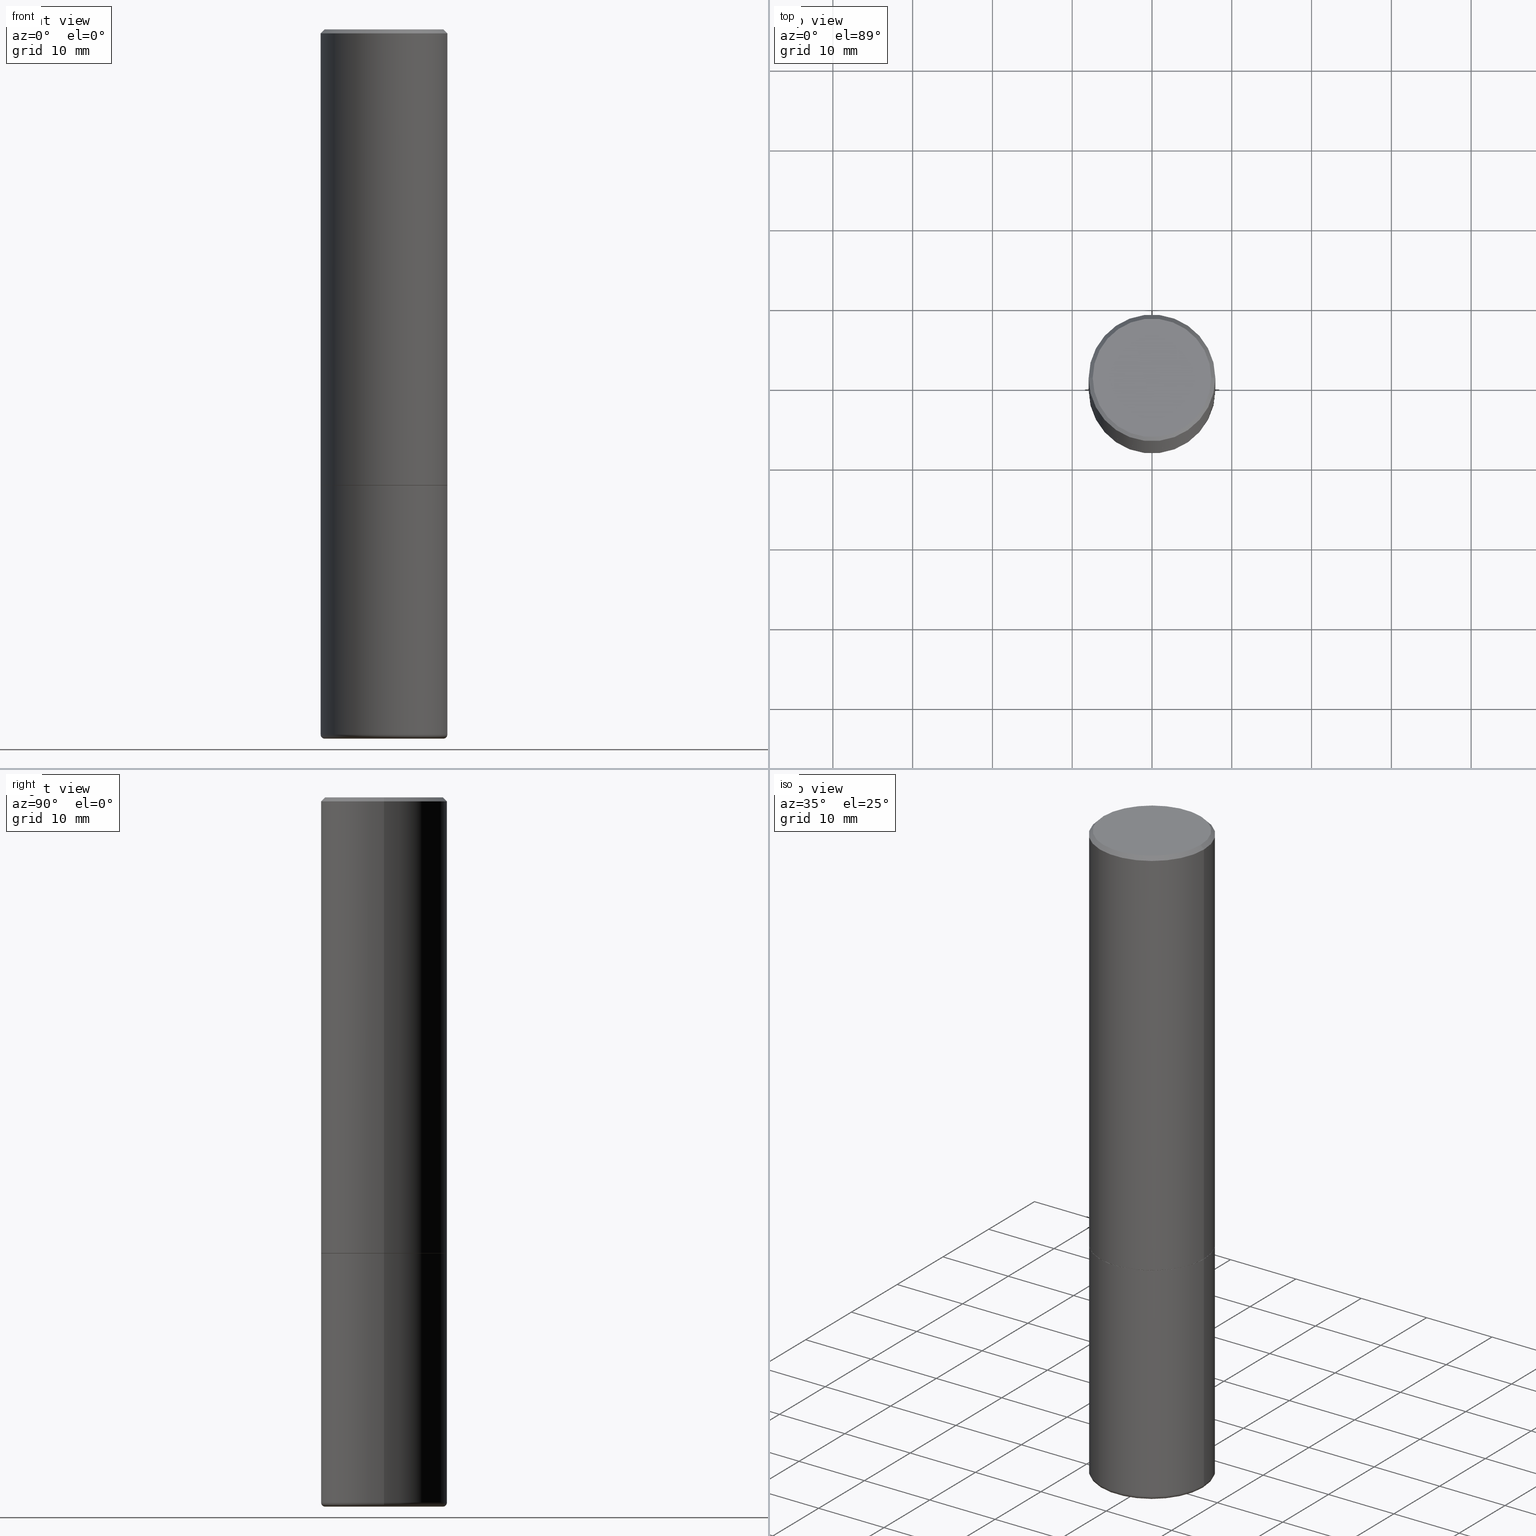
[diagram: canonical four-view strip — front | top / right | iso, engineering-drawing reading convention]
A machine part, canonical four-view strip (front | top / right | iso — engineering-drawing reading convention). The complete STEP part file that produces these views, byte-faithful:
ISO-10303-21;
HEADER;
FILE_DESCRIPTION (( 'STEP AP203' ),
    '1' );
FILE_NAME ('38180.STEP',
    '2023-03-22T20:30:16',
    ( '' ),
    ( '' ),
    'SwSTEP 2.0',
    'SolidWorks 2022',
    '' );
FILE_SCHEMA (( 'CONFIG_CONTROL_DESIGN' ));
ENDSEC;

DATA;
#1 = CARTESIAN_POINT ( 'NONE',  ( 8.522150908112921551E-29, -1.216633421009208123E-14, -3.484725580784579169 ) ) ;
#2 = EDGE_CURVE ( 'NONE', #30, #95, #122, .T. ) ;
#3 = FACE_OUTER_BOUND ( 'NONE', #417, .T. ) ;
#4 = AXIS2_PLACEMENT_3D ( 'NONE', #63, #68, #236 ) ;
#5 = ADVANCED_FACE ( 'NONE', ( #173 ), #110, .F. ) ;
#6 = ORIENTED_EDGE ( 'NONE', *, *, #218, .T. ) ;
#7 = CARTESIAN_POINT ( 'NONE',  ( -0.3124999999999998890, 2.220446049250312292E-15, -1.537167215704657391E-29 ) ) ;
#8 = DIRECTION ( 'NONE',  ( 1.000000000000000000, -6.982962677686266711E-15, 4.876176775795935232E-29 ) ) ;
#9 = CC_DESIGN_PERSON_AND_ORGANIZATION_ASSIGNMENT ( #411, #49, ( #199 ) ) ;
#10 = ADVANCED_FACE ( 'NONE', ( #400 ), #228, .T. ) ;
#11 = FACE_OUTER_BOUND ( 'NONE', #91, .T. ) ;
#12 = VECTOR ( 'NONE', #352, 39.37007874015748143 ) ;
#13 = ORIENTED_EDGE ( 'NONE', *, *, #170, .T. ) ;
#14 = VECTOR ( 'NONE', #305, 39.37007874015748143 ) ;
#15 = DATE_AND_TIME ( #243, #247 ) ;
#16 = CARTESIAN_POINT ( 'NONE',  ( 5.201262067026669480E-19, -1.216685433629869943E-14, -3.484725580784579169 ) ) ;
#17 = FACE_OUTER_BOUND ( 'NONE', #387, .T. ) ;
#18 = EDGE_CURVE ( 'NONE', #424, #171, #234, .T. ) ;
#19 = ORIENTED_EDGE ( 'NONE', *, *, #41, .T. ) ;
#20 = CARTESIAN_POINT ( 'NONE',  ( 5.499859345110370619E-29, -7.852341531058232286E-15, -2.248999999999999222 ) ) ;
#21 = EDGE_CURVE ( 'NONE', #358, #416, #158, .T. ) ;
#22 = APPLICATION_CONTEXT ( 'configuration controlled 3d designs of mechanical parts and assemblies' ) ;
#23 = CIRCLE ( 'NONE', #31, 0.3124999999999998335 ) ;
#24 = FACE_OUTER_BOUND ( 'NONE', #425, .T. ) ;
#25 = ORIENTED_EDGE ( 'NONE', *, *, #258, .T. ) ;
#26 = CARTESIAN_POINT ( 'NONE',  ( -0.2914532808751413295, -1.003964463977932083E-14, -3.499999999999999112 ) ) ;
#27 = ADVANCED_FACE ( 'NONE', ( #251 ), #150, .F. ) ;
#28 = VERTEX_POINT ( 'NONE', #143 ) ;
#29 = PERSON_AND_ORGANIZATION ( #368, #378 ) ;
#30 = VERTEX_POINT ( 'NONE', #410 ) ;
#31 = AXIS2_PLACEMENT_3D ( 'NONE', #47, #79, #339 ) ;
#32 =( GEOMETRIC_REPRESENTATION_CONTEXT ( 3 ) GLOBAL_UNCERTAINTY_ASSIGNED_CONTEXT ( ( #64 ) ) GLOBAL_UNIT_ASSIGNED_CONTEXT ( ( #98, #92, #356 ) ) REPRESENTATION_CONTEXT ( 'NONE', 'WORKASPACE' ) );
#33 = LENGTH_MEASURE_WITH_UNIT ( LENGTH_MEASURE( 0.02539999999999999897 ), #162 );
#34 = ORIENTED_EDGE ( 'NONE', *, *, #84, .T. ) ;
#35 = APPLICATION_PROTOCOL_DEFINITION ( 'international standard', 'config_control_design', 1994, #335 ) ;
#36 = ORIENTED_EDGE ( 'NONE', *, *, #186, .F. ) ;
#37 = APPROVAL_DATE_TIME ( #433, #275 ) ;
#38 = PERSON_AND_ORGANIZATION_ROLE ( 'creator' ) ;
#39 = DIRECTION ( 'NONE',  ( 1.000000000000000000, -6.982962677686265922E-15, 0.000000000000000000 ) ) ;
#40 = LINE ( 'NONE', #213, #437 ) ;
#41 = EDGE_CURVE ( 'NONE', #355, #28, #23, .T. ) ;
#42 = APPROVAL_STATUS ( 'not_yet_approved' ) ;
#43 = DIRECTION ( 'NONE',  ( 2.438088387897960049E-29, -3.491481338843145188E-15, -1.000000000000000000 ) ) ;
#44 = DIRECTION ( 'NONE',  ( -1.000000000000000000, 6.982962677686265133E-15, 0.000000000000000000 ) ) ;
#45 = VECTOR ( 'NONE', #113, 39.37007874015748143 ) ;
#46 = LOCAL_TIME ( 16, 30, 16.00000000000000000, #181 ) ;
#47 = CARTESIAN_POINT ( 'NONE',  ( 4.890937612370276662E-31, -6.982962677686296539E-17, -0.02000000000000001776 ) ) ;
#48 = DIRECTION ( 'NONE',  ( -1.000000000000000000, 7.105427357601025525E-15, 0.000000000000000000 ) ) ;
#49 = PERSON_AND_ORGANIZATION_ROLE ( 'classification_officer' ) ;
#50 = DIRECTION ( 'NONE',  ( -2.445468806185136597E-29, 3.491481338843145583E-15, 1.000000000000000000 ) ) ;
#51 = VECTOR ( 'NONE', #229, 39.37007874015748854 ) ;
#52 = EDGE_CURVE ( 'NONE', #397, #93, #214, .T. ) ;
#53 = DIRECTION ( 'NONE',  ( -2.445468806185136597E-29, 3.491481338843145583E-15, 1.000000000000000000 ) ) ;
#54 = ORIENTED_EDGE ( 'NONE', *, *, #218, .F. ) ;
#55 = CARTESIAN_POINT ( 'NONE',  ( 5.502304813916556222E-29, -7.855833012397076871E-15, -2.249999999999999556 ) ) ;
#56 = ORIENTED_EDGE ( 'NONE', *, *, #395, .T. ) ;
#57 = DIRECTION ( 'NONE',  ( -2.445468806185136597E-29, 3.491481338843145583E-15, 1.000000000000000000 ) ) ;
#58 = ORIENTED_EDGE ( 'NONE', *, *, #258, .F. ) ;
#59 = AXIS2_PLACEMENT_3D ( 'NONE', #370, #409, #74 ) ;
#60 = CIRCLE ( 'NONE', #191, 0.01999999999999971939 ) ;
#61 = DIRECTION ( 'NONE',  ( -2.445468806185136597E-29, 3.491481338843145583E-15, 1.000000000000000000 ) ) ;
#62 = ORIENTED_EDGE ( 'NONE', *, *, #375, .F. ) ;
#63 = CARTESIAN_POINT ( 'NONE',  ( 0.000000000000000000, 0.000000000000000000, 0.000000000000000000 ) ) ;
#64 = UNCERTAINTY_MEASURE_WITH_UNIT (LENGTH_MEASURE( 1.000000000000000082E-05 ), #98, 'distance_accuracy_value', 'NONE');
#65 = LOCAL_TIME ( 16, 30, 16.00000000000000000, #135 ) ;
#66 = DIRECTION ( 'NONE',  ( 1.000000000000000000, -6.982962677686266711E-15, 4.876176775795935232E-29 ) ) ;
#67 = ORIENTED_EDGE ( 'NONE', *, *, #52, .F. ) ;
#68 = DIRECTION ( 'NONE',  ( 0.000000000000000000, 0.000000000000000000, 1.000000000000000000 ) ) ;
#69 = DIRECTION ( 'NONE',  ( 1.000000000000000000, -6.982962677686265922E-15, 0.000000000000000000 ) ) ;
#70 = ORIENTED_EDGE ( 'NONE', *, *, #421, .T. ) ;
#71 = SECURITY_CLASSIFICATION_LEVEL ( 'unclassified' ) ;
#72 = AXIS2_PLACEMENT_3D ( 'NONE', #232, #126, #315 ) ;
#73 = AXIS2_PLACEMENT_3D ( 'NONE', #412, #120, #415 ) ;
#74 = DIRECTION ( 'NONE',  ( -1.000000000000000000, 6.982962677686266711E-15, 0.000000000000000000 ) ) ;
#75 = ADVANCED_FACE ( 'NONE', ( #278 ), #185, .T. ) ;
#76 = PERSON_AND_ORGANIZATION ( #368, #378 ) ;
#77 = CARTESIAN_POINT ( 'NONE',  ( -0.3124999999999998890, 2.220446049250312292E-15, -1.537167215704657391E-29 ) ) ;
#78 = FACE_OUTER_BOUND ( 'NONE', #286, .T. ) ;
#79 = DIRECTION ( 'NONE',  ( -2.445468806185136597E-29, 3.491481338843145583E-15, 1.000000000000000000 ) ) ;
#80 = AXIS2_PLACEMENT_3D ( 'NONE', #273, #217, #44 ) ;
#81 = CONICAL_SURFACE ( 'NONE', #385, 0.3114999999999999991, 0.7853981633972775267 ) ;
#82 = DIRECTION ( 'NONE',  ( -2.445468806185136597E-29, 3.491481338843145583E-15, 1.000000000000000000 ) ) ;
#83 = LINE ( 'NONE', #16, #190 ) ;
#84 = EDGE_CURVE ( 'NONE', #95, #355, #40, .T. ) ;
#85 = EDGE_LOOP ( 'NONE', ( #114, #366, #108, #188 ) ) ;
#86 = DIRECTION ( 'NONE',  ( -2.438088387897960049E-29, 3.491481338843145188E-15, 1.000000000000000000 ) ) ;
#87 = CIRCLE ( 'NONE', #230, 0.3125000000000000000 ) ;
#88 = DIRECTION ( 'NONE',  ( 1.000000000000000000, -6.982962677686269077E-15, 4.883557194083113462E-29 ) ) ;
#89 = ORIENTED_EDGE ( 'NONE', *, *, #367, .F. ) ;
#90 = DIRECTION ( 'NONE',  ( 1.000000000000000000, -6.982962677686236734E-15, 0.000000000000000000 ) ) ;
#91 = EDGE_LOOP ( 'NONE', ( #264, #34, #19, #365 ) ) ;
#92 =( NAMED_UNIT ( * ) PLANE_ANGLE_UNIT ( ) SI_UNIT ( $, .RADIAN. ) );
#93 = VERTEX_POINT ( 'NONE', #337 ) ;
#94 = AXIS2_PLACEMENT_3D ( 'NONE', #151, #383, #88 ) ;
#95 = VERTEX_POINT ( 'NONE', #376 ) ;
#96 = ORIENTED_EDGE ( 'NONE', *, *, #101, .T. ) ;
#97 = EDGE_CURVE ( 'NONE', #322, #93, #340, .T. ) ;
#98 =( CONVERSION_BASED_UNIT ( 'INCH', #33 ) LENGTH_UNIT ( ) NAMED_UNIT ( #314 ) );
#99 = EDGE_CURVE ( 'NONE', #194, #413, #117, .T. ) ;
#100 = ORIENTED_EDGE ( 'NONE', *, *, #373, .T. ) ;
#101 = EDGE_CURVE ( 'NONE', #424, #416, #249, .T. ) ;
#102 = APPROVAL ( #42, 'UNSPECIFIED' ) ;
#103 = VECTOR ( 'NONE', #372, 39.37007874015748854 ) ;
#104 = APPROVAL_PERSON_ORGANIZATION ( #306, #369, #178 ) ;
#105 = DIRECTION ( 'NONE',  ( -2.445468806185136597E-29, 3.491481338843145583E-15, 1.000000000000000000 ) ) ;
#106 = EDGE_LOOP ( 'NONE', ( #430, #389, #166, #67 ) ) ;
#107 = PERSON_AND_ORGANIZATION ( #368, #378 ) ;
#108 = ORIENTED_EDGE ( 'NONE', *, *, #332, .T. ) ;
#109 = DIRECTION ( 'NONE',  ( -2.445468806185136597E-29, 3.491481338843145583E-15, 1.000000000000000000 ) ) ;
#110 = CONICAL_SURFACE ( 'NONE', #349, 751.2258538476803551, 1.518436449235074592 ) ;
#111 = CIRCLE ( 'NONE', #296, 0.2924999999999998157 ) ;
#112 = DIRECTION ( 'NONE',  ( -2.445468806185136877E-29, 3.491481338843145188E-15, 1.000000000000000000 ) ) ;
#113 = DIRECTION ( 'NONE',  ( 0.7071067811864267805, -2.468850131080992517E-15, 0.7071067811866682540 ) ) ;
#114 = ORIENTED_EDGE ( 'NONE', *, *, #84, .F. ) ;
#115 = EDGE_CURVE ( 'NONE', #200, #322, #130, .T. ) ;
#116 = DIRECTION ( 'NONE',  ( 1.000000000000000000, -6.982962677686269077E-15, 0.000000000000000000 ) ) ;
#117 = LINE ( 'NONE', #182, #103 ) ;
#118 = APPROVAL_DATE_TIME ( #15, #369 ) ;
#119 = DIRECTION ( 'NONE',  ( -2.445468806185136597E-29, 3.491481338843145583E-15, 1.000000000000000000 ) ) ;
#120 = DIRECTION ( 'NONE',  ( -2.445468806185136597E-29, 3.491481338843145583E-15, 1.000000000000000000 ) ) ;
#121 = CARTESIAN_POINT ( 'NONE',  ( 0.3125000000000000000, -1.003800884917403364E-14, -2.249999999999999556 ) ) ;
#122 = CIRCLE ( 'NONE', #255, 0.2924999999999998157 ) ;
#123 = ORIENTED_EDGE ( 'NONE', *, *, #142, .F. ) ;
#124 = PRODUCT_DEFINITION_FORMATION_WITH_SPECIFIED_SOURCE ( 'ANY', '', #250, .NOT_KNOWN. ) ;
#125 = ADVANCED_FACE ( 'NONE', ( #304 ), #295, .T. ) ;
#126 = DIRECTION ( 'NONE',  ( 2.445468806185136597E-29, -3.491481338843145583E-15, -1.000000000000000000 ) ) ;
#127 = DIRECTION ( 'NONE',  ( 1.000000000000000000, -6.982962677686269077E-15, 0.000000000000000000 ) ) ;
#128 = CC_DESIGN_PERSON_AND_ORGANIZATION_ASSIGNMENT ( #29, #208, ( #250 ) ) ;
#129 = EDGE_LOOP ( 'NONE', ( #25, #268, #62, #401 ) ) ;
#130 = CIRCLE ( 'NONE', #271, 0.3114999999999999991 ) ;
#131 = AXIS2_PLACEMENT_3D ( 'NONE', #55, #86, #224 ) ;
#132 = CALENDAR_DATE ( 2023, 22, 3 ) ;
#133 = DIRECTION ( 'NONE',  ( 2.445468806185136597E-29, -3.491481338843145583E-15, -1.000000000000000000 ) ) ;
#134 = ORIENTED_EDGE ( 'NONE', *, *, #375, .T. ) ;
#135 = COORDINATED_UNIVERSAL_TIME_OFFSET ( 5, 0, .BEHIND. ) ;
#136 = ORIENTED_EDGE ( 'NONE', *, *, #359, .T. ) ;
#137 = DIRECTION ( 'NONE',  ( -1.000000000000000000, 6.982962677686266711E-15, 0.000000000000000000 ) ) ;
#138 = CIRCLE ( 'NONE', #276, 0.2914532808751413295 ) ;
#139 = AXIS2_PLACEMENT_3D ( 'NONE', #165, #269, #127 ) ;
#140 = FACE_OUTER_BOUND ( 'NONE', #282, .T. ) ;
#141 = EDGE_LOOP ( 'NONE', ( #36, #198, #205, #89 ) ) ;
#142 = EDGE_CURVE ( 'NONE', #416, #358, #168, .T. ) ;
#143 = CARTESIAN_POINT ( 'NONE',  ( -0.3124999999999998335, 2.112346210000093866E-15, -0.02000000000000001776 ) ) ;
#144 = PRODUCT_DEFINITION_SHAPE ( 'NONE', 'NONE',  #179 ) ;
#145 = CARTESIAN_POINT ( 'NONE',  ( -0.3114999999999999991, -5.637193936156142396E-15, -2.249999999999999556 ) ) ;
#146 = CLOSED_SHELL ( 'NONE', ( #5, #301, #399, #27, #75, #225, #196 ) ) ;
#147 = VECTOR ( 'NONE', #112, 39.37007874015748143 ) ;
#148 = CARTESIAN_POINT ( 'NONE',  ( 0.3124999999999998890, -2.182175836776957558E-15, 1.523805242436229235E-29 ) ) ;
#149 = CARTESIAN_POINT ( 'NONE',  ( 2.182175836777013173E-15, 0.3124999999999921729, -2.250000000000000444 ) ) ;
#150 = PLANE ( 'NONE',  #287 ) ;
#151 = CARTESIAN_POINT ( 'NONE',  ( 8.510298474124427942E-29, -1.215045075825074504E-14, -3.480027409304908392 ) ) ;
#152 = CIRCLE ( 'NONE', #392, 0.3114999999999999991 ) ;
#153 = ORIENTED_EDGE ( 'NONE', *, *, #21, .F. ) ;
#154 = SHAPE_DEFINITION_REPRESENTATION ( #144, #346 ) ;
#155 = DIRECTION ( 'NONE',  ( 0.9986295347545742773, -7.033825938271996334E-15, -0.05233595624293597981 ) ) ;
#156 = CARTESIAN_POINT ( 'NONE',  ( 4.890937612370276662E-31, -6.982962677686296539E-17, -0.02000000000000001776 ) ) ;
#157 = DIRECTION ( 'NONE',  ( 1.000000000000000000, -6.982962677686269077E-15, 0.000000000000000000 ) ) ;
#158 = CIRCLE ( 'NONE', #418, 0.3125000000000000000 ) ;
#159 = ORIENTED_EDGE ( 'NONE', *, *, #2, .T. ) ;
#160 = CC_DESIGN_SECURITY_CLASSIFICATION ( #199, ( #124 ) ) ;
#161 = CARTESIAN_POINT ( 'NONE',  ( 0.3124999999999998335, -2.213735251080465334E-15, -0.02000000000000001776 ) ) ;
#162 =( LENGTH_UNIT ( ) NAMED_UNIT ( * ) SI_UNIT ( $, .METRE. ) );
#163 = DESIGN_CONTEXT ( 'detailed design', #335, 'design' ) ;
#164 = ORIENTED_EDGE ( 'NONE', *, *, #186, .T. ) ;
#165 = CARTESIAN_POINT ( 'NONE',  ( 8.510298474124427942E-29, -1.215045075825074504E-14, -3.480027409304908392 ) ) ;
#166 = ORIENTED_EDGE ( 'NONE', *, *, #97, .T. ) ;
#167 = ORIENTED_EDGE ( 'NONE', *, *, #18, .T. ) ;
#168 = CIRCLE ( 'NONE', #319, 0.3125000000000000000 ) ;
#169 = AXIS2_PLACEMENT_3D ( 'NONE', #156, #50, #195 ) ;
#170 = EDGE_CURVE ( 'NONE', #413, #311, #138, .T. ) ;
#171 = VERTEX_POINT ( 'NONE', #245 ) ;
#172 = PERSON_AND_ORGANIZATION ( #368, #378 ) ;
#173 = FACE_OUTER_BOUND ( 'NONE', #211, .T. ) ;
#174 = EDGE_LOOP ( 'NONE', ( #391, #260 ) ) ;
#175 = PERSON_AND_ORGANIZATION ( #368, #378 ) ;
#176 = VECTOR ( 'NONE', #407, 39.37007874015748143 ) ;
#177 = DIRECTION ( 'NONE',  ( 0.7071067811865469066, -7.319954787623252890E-15, -0.7071067811865479058 ) ) ;
#178 = APPROVAL_ROLE ( '' ) ;
#179 = PRODUCT_DEFINITION ( 'UNKNOWN', '', #124, #163 ) ;
#180 = LINE ( 'NONE', #7, #14 ) ;
#181 = COORDINATED_UNIVERSAL_TIME_OFFSET ( 5, 0, .BEHIND. ) ;
#182 = CARTESIAN_POINT ( 'NONE',  ( -5.201262065322311998E-19, -1.216685433629869943E-14, -3.484725580784579169 ) ) ;
#183 = LOCAL_TIME ( 16, 30, 16.00000000000000000, #298 ) ;
#184 = DIRECTION ( 'NONE',  ( 1.000000000000000000, -6.982962677686265133E-15, 0.000000000000000000 ) ) ;
#185 = CYLINDRICAL_SURFACE ( 'NONE', #221, 0.3124999999999998890 ) ;
#186 = EDGE_CURVE ( 'NONE', #397, #28, #180, .T. ) ;
#187 = CYLINDRICAL_SURFACE ( 'NONE', #277, 0.3124999999999998890 ) ;
#188 = ORIENTED_EDGE ( 'NONE', *, *, #367, .T. ) ;
#189 = CALENDAR_DATE ( 2023, 22, 3 ) ;
#190 = VECTOR ( 'NONE', #155, 39.37007874015748854 ) ;
#191 = AXIS2_PLACEMENT_3D ( 'NONE', #197, #288, #90 ) ;
#192 = ORIENTED_EDGE ( 'NONE', *, *, #115, .F. ) ;
#193 = CARTESIAN_POINT ( 'NONE',  ( -0.2925000000000000377, -1.007211325615245212E-14, -3.480027409304908392 ) ) ;
#194 = VERTEX_POINT ( 'NONE', #1 ) ;
#195 = DIRECTION ( 'NONE',  ( 1.000000000000000000, -6.982962677686266711E-15, 0.000000000000000000 ) ) ;
#196 = ADVANCED_FACE ( 'NONE', ( #3 ), #263, .F. ) ;
#197 = CARTESIAN_POINT ( 'NONE',  ( 0.2925000000000000377, -1.419296734147397679E-14, -3.480027409304908392 ) ) ;
#198 = ORIENTED_EDGE ( 'NONE', *, *, #52, .T. ) ;
#199 = SECURITY_CLASSIFICATION ( '', '', #71 ) ;
#200 = VERTEX_POINT ( 'NONE', #145 ) ;
#201 = APPLICATION_PROTOCOL_DEFINITION ( 'international standard', 'config_control_design', 1994, #22 ) ;
#202 = ORIENTED_EDGE ( 'NONE', *, *, #41, .F. ) ;
#203 = DIRECTION ( 'NONE',  ( -2.445468806185136597E-29, 3.491481338843145583E-15, 1.000000000000000000 ) ) ;
#204 = CC_DESIGN_PERSON_AND_ORGANIZATION_ASSIGNMENT ( #394, #431, ( #179 ) ) ;
#205 = ORIENTED_EDGE ( 'NONE', *, *, #223, .T. ) ;
#206 = AXIS2_PLACEMENT_3D ( 'NONE', #259, #82, #345 ) ;
#207 = AXIS2_PLACEMENT_3D ( 'NONE', #238, #334, #390 ) ;
#208 = PERSON_AND_ORGANIZATION_ROLE ( 'design_owner' ) ;
#209 = CARTESIAN_POINT ( 'NONE',  ( -1.043851414335219820E-46, 1.490343170380447200E-32, 4.268512490100411279E-18 ) ) ;
#210 = MECHANICAL_CONTEXT ( 'NONE', #22, 'mechanical' ) ;
#211 = EDGE_LOOP ( 'NONE', ( #423, #402, #297 ) ) ;
#212 = CC_DESIGN_PERSON_AND_ORGANIZATION_ASSIGNMENT ( #107, #38, ( #124 ) ) ;
#213 = CARTESIAN_POINT ( 'NONE',  ( 0.3124999999999998335, -2.213735251080465334E-15, -0.02000000000000001776 ) ) ;
#214 = CIRCLE ( 'NONE', #377, 0.3125000000000000000 ) ;
#215 = CARTESIAN_POINT ( 'NONE',  ( 0.3114999999999999991, -1.003102588649634920E-14, -2.249999999999999556 ) ) ;
#216 = DATE_AND_TIME ( #440, #242 ) ;
#217 = DIRECTION ( 'NONE',  ( 2.445468806185136597E-29, -3.491481338843145583E-15, -1.000000000000000000 ) ) ;
#218 = EDGE_CURVE ( 'NONE', #171, #358, #274, .T. ) ;
#219 = CC_DESIGN_DATE_AND_TIME_ASSIGNMENT ( #396, #240, ( #179 ) ) ;
#220 = DIRECTION ( 'NONE',  ( -2.445468806185136597E-29, 3.491481338843145583E-15, 1.000000000000000000 ) ) ;
#221 = AXIS2_PLACEMENT_3D ( 'NONE', #309, #220, #8 ) ;
#222 = CARTESIAN_POINT ( 'NONE',  ( 5.499859345110370619E-29, -7.852341531058232286E-15, -2.248999999999999222 ) ) ;
#223 = EDGE_CURVE ( 'NONE', #93, #355, #248, .T. ) ;
#224 = DIRECTION ( 'NONE',  ( 1.000000000000000000, -6.982962677686265922E-15, 4.876176775795935793E-29 ) ) ;
#225 = ADVANCED_FACE ( 'NONE', ( #78 ), #405, .T. ) ;
#226 = APPROVAL_ROLE ( '' ) ;
#227 = CARTESIAN_POINT ( 'NONE',  ( 0.2914532808751413295, -1.425539206859132982E-14, -3.499999999999999112 ) ) ;
#228 = CONICAL_SURFACE ( 'NONE', #241, 0.3114999999999999991, 0.7853981633972775267 ) ;
#229 = DIRECTION ( 'NONE',  ( -0.7071067811865469066, 2.468850131082251144E-15, -0.7071067811865479058 ) ) ;
#230 = AXIS2_PLACEMENT_3D ( 'NONE', #20, #57, #157 ) ;
#231 = CARTESIAN_POINT ( 'NONE',  ( 8.559140821647976968E-29, -1.222018468595100619E-14, -3.499999999999999112 ) ) ;
#232 = CARTESIAN_POINT ( 'NONE',  ( 4.890937612370276662E-31, -6.982962677686296539E-17, -0.02000000000000001776 ) ) ;
#233 = CYLINDRICAL_SURFACE ( 'NONE', #419, 0.3124999999999998890 ) ;
#234 = CIRCLE ( 'NONE', #302, 0.3124999999999997224 ) ;
#235 = ORIENTED_EDGE ( 'NONE', *, *, #223, .F. ) ;
#236 = DIRECTION ( 'NONE',  ( 1.000000000000000000, 0.000000000000000000, 0.000000000000000000 ) ) ;
#237 = DIRECTION ( 'NONE',  ( -2.445468806185136597E-29, 3.491481338843145583E-15, 1.000000000000000000 ) ) ;
#238 = CARTESIAN_POINT ( 'NONE',  ( 2.042516583223231356E-15, 0.2924999999999998157, -1.019124035366569212E-15 ) ) ;
#239 = CARTESIAN_POINT ( 'NONE',  ( 8.510298474124427942E-29, -1.215045075825074504E-14, -3.480027409304908392 ) ) ;
#240 = DATE_TIME_ROLE ( 'creation_date' ) ;
#241 = AXIS2_PLACEMENT_3D ( 'NONE', #329, #105, #69 ) ;
#242 = LOCAL_TIME ( 16, 30, 16.00000000000000000, #244 ) ;
#243 = CALENDAR_DATE ( 2023, 22, 3 ) ;
#244 = COORDINATED_UNIVERSAL_TIME_OFFSET ( 5, 0, .BEHIND. ) ;
#245 = CARTESIAN_POINT ( 'NONE',  ( 0.3124999999999997224, -1.433262659502770023E-14, -3.480027409304908392 ) ) ;
#246 = AXIS2_PLACEMENT_3D ( 'NONE', #231, #290, #318 ) ;
#247 = LOCAL_TIME ( 16, 30, 16.00000000000000000, #442 ) ;
#248 = LINE ( 'NONE', #148, #176 ) ;
#249 = LINE ( 'NONE', #77, #341 ) ;
#250 = PRODUCT ( '38180', '38180', '', ( #210 ) ) ;
#251 = FACE_OUTER_BOUND ( 'NONE', #174, .T. ) ;
#252 = DIRECTION ( 'NONE',  ( -2.445468806185136877E-29, 3.491481338843145188E-15, 1.000000000000000000 ) ) ;
#253 = DIRECTION ( 'NONE',  ( 1.000000000000000000, -6.982962677686266711E-15, 4.876176775795935232E-29 ) ) ;
#254 = DIRECTION ( 'NONE',  ( 1.000000000000000000, -6.982962677686266711E-15, 4.876067333457692840E-29 ) ) ;
#255 = AXIS2_PLACEMENT_3D ( 'NONE', #209, #237, #270 ) ;
#256 = CARTESIAN_POINT ( 'NONE',  ( -0.3124999999999998335, 2.112346210000093866E-15, -0.02000000000000001776 ) ) ;
#257 = APPROVAL_PERSON_ORGANIZATION ( #172, #275, #428 ) ;
#258 = EDGE_CURVE ( 'NONE', #322, #200, #152, .T. ) ;
#259 = CARTESIAN_POINT ( 'NONE',  ( 8.510298474124427942E-29, -1.215045075825074504E-14, -3.480027409304908392 ) ) ;
#260 = ORIENTED_EDGE ( 'NONE', *, *, #142, .T. ) ;
#261 = CARTESIAN_POINT ( 'NONE',  ( 5.502304813916556222E-29, -7.855833012397076871E-15, -2.249999999999999556 ) ) ;
#262 = MANIFOLD_SOLID_BREP ( 'Body-Move/Copy2[1]', #146 ) ;
#263 = CONICAL_SURFACE ( 'NONE', #59, 751.2258538476803551, 1.518436449235074592 ) ;
#264 = ORIENTED_EDGE ( 'NONE', *, *, #359, .F. ) ;
#265 = MANIFOLD_SOLID_BREP ( 'Body-Move/Copy2[2]', #294 ) ;
#266 = ORIENTED_EDGE ( 'NONE', *, *, #321, .F. ) ;
#267 = CALENDAR_DATE ( 2023, 22, 3 ) ;
#268 = ORIENTED_EDGE ( 'NONE', *, *, #285, .T. ) ;
#269 = DIRECTION ( 'NONE',  ( -2.445468806185136597E-29, 3.491481338843145583E-15, 1.000000000000000000 ) ) ;
#270 = DIRECTION ( 'NONE',  ( 1.000000000000000000, -6.982962677686266711E-15, 4.876067333457692840E-29 ) ) ;
#271 = AXIS2_PLACEMENT_3D ( 'NONE', #374, #336, #39 ) ;
#272 = ORIENTED_EDGE ( 'NONE', *, *, #373, .F. ) ;
#273 = CARTESIAN_POINT ( 'NONE',  ( 4.890937612370276662E-31, -6.982962677686296539E-17, -0.02000000000000001776 ) ) ;
#274 = LINE ( 'NONE', #404, #147 ) ;
#275 = APPROVAL ( #293, 'UNSPECIFIED' ) ;
#276 = AXIS2_PLACEMENT_3D ( 'NONE', #441, #109, #308 ) ;
#277 = AXIS2_PLACEMENT_3D ( 'NONE', #310, #119, #253 ) ;
#278 = FACE_OUTER_BOUND ( 'NONE', #439, .T. ) ;
#279 = DIRECTION ( 'NONE',  ( -2.445468806185136597E-29, 3.491481338843145583E-15, 1.000000000000000000 ) ) ;
#280 = DIRECTION ( 'NONE',  ( 1.000000000000000000, -6.982962677686265133E-15, 0.000000000000000000 ) ) ;
#281 = CYLINDRICAL_SURFACE ( 'NONE', #73, 0.3124999999999998890 ) ;
#282 = EDGE_LOOP ( 'NONE', ( #159, #136 ) ) ;
#283 = DIRECTION ( 'NONE',  ( -2.445468806185136597E-29, 3.491481338843145583E-15, 1.000000000000000000 ) ) ;
#284 = CARTESIAN_POINT ( 'NONE',  ( 0.3114999999999999991, -1.003102588649634920E-14, -2.249999999999999556 ) ) ;
#285 = EDGE_CURVE ( 'NONE', #200, #397, #420, .T. ) ;
#286 = EDGE_LOOP ( 'NONE', ( #272, #13, #56, #382 ) ) ;
#287 = AXIS2_PLACEMENT_3D ( 'NONE', #149, #43, #343 ) ;
#288 = DIRECTION ( 'NONE',  ( -6.982962677686266711E-15, -1.000000000000000000, 3.491481338843145583E-15 ) ) ;
#289 = EDGE_LOOP ( 'NONE', ( #58, #192 ) ) ;
#290 = DIRECTION ( 'NONE',  ( -2.445468806185136597E-29, 3.491481338843145583E-15, 1.000000000000000000 ) ) ;
#291 = ORIENTED_EDGE ( 'NONE', *, *, #321, .T. ) ;
#292 = PRODUCT_RELATED_PRODUCT_CATEGORY ( 'detail', '', ( #250 ) ) ;
#293 = APPROVAL_STATUS ( 'not_yet_approved' ) ;
#294 = CLOSED_SHELL ( 'NONE', ( #408, #429, #299, #125, #344, #10, #362, #436 ) ) ;
#295 = CONICAL_SURFACE ( 'NONE', #80, 0.3124999999999998335, 0.7853981633974476129 ) ;
#296 = AXIS2_PLACEMENT_3D ( 'NONE', #386, #53, #254 ) ;
#297 = ORIENTED_EDGE ( 'NONE', *, *, #170, .F. ) ;
#298 = COORDINATED_UNIVERSAL_TIME_OFFSET ( 5, 0, .BEHIND. ) ;
#299 = ADVANCED_FACE ( 'NONE', ( #11 ), #384, .T. ) ;
#300 = ORIENTED_EDGE ( 'NONE', *, *, #316, .F. ) ;
#301 = ADVANCED_FACE ( 'NONE', ( #17 ), #371, .T. ) ;
#302 = AXIS2_PLACEMENT_3D ( 'NONE', #239, #203, #327 ) ;
#303 = APPROVAL_DATE_TIME ( #216, #102 ) ;
#304 = FACE_OUTER_BOUND ( 'NONE', #85, .T. ) ;
#305 = DIRECTION ( 'NONE',  ( -2.445468806185136877E-29, 3.491481338843145188E-15, 1.000000000000000000 ) ) ;
#306 = PERSON_AND_ORGANIZATION ( #368, #378 ) ;
#307 = DIRECTION ( 'NONE',  ( -2.445468806185136597E-29, 3.491481338843145583E-15, 1.000000000000000000 ) ) ;
#308 = DIRECTION ( 'NONE',  ( 1.000000000000000000, -6.982962677686265133E-15, 0.000000000000000000 ) ) ;
#309 = CARTESIAN_POINT ( 'NONE',  ( 0.000000000000000000, 0.000000000000000000, 0.000000000000000000 ) ) ;
#310 = CARTESIAN_POINT ( 'NONE',  ( 0.000000000000000000, 0.000000000000000000, 0.000000000000000000 ) ) ;
#311 = VERTEX_POINT ( 'NONE', #227 ) ;
#312 = DATE_TIME_ROLE ( 'classification_date' ) ;
#313 = CIRCLE ( 'NONE', #139, 0.3124999999999997224 ) ;
#314 = DIMENSIONAL_EXPONENTS ( 1.000000000000000000, 0.000000000000000000, 0.000000000000000000, 0.000000000000000000, 0.000000000000000000, 0.000000000000000000, 0.000000000000000000 ) ;
#315 = DIRECTION ( 'NONE',  ( -1.000000000000000000, 6.982962677686265133E-15, 0.000000000000000000 ) ) ;
#316 = EDGE_CURVE ( 'NONE', #194, #311, #83, .T. ) ;
#317 = DIRECTION ( 'NONE',  ( 7.105427357601001859E-15, 1.000000000000000000, -3.491481338843145583E-15 ) ) ;
#318 = DIRECTION ( 'NONE',  ( 1.000000000000000000, -6.982962677686265133E-15, 0.000000000000000000 ) ) ;
#319 = AXIS2_PLACEMENT_3D ( 'NONE', #403, #307, #184 ) ;
#320 = CARTESIAN_POINT ( 'NONE',  ( -0.3125000000000000000, -1.740639529667232739E-15, -2.248999999999999222 ) ) ;
#321 = EDGE_CURVE ( 'NONE', #311, #413, #426, .T. ) ;
#322 = VERTEX_POINT ( 'NONE', #284 ) ;
#323 = ORIENTED_EDGE ( 'NONE', *, *, #99, .T. ) ;
#324 = CC_DESIGN_PERSON_AND_ORGANIZATION_ASSIGNMENT ( #76, #347, ( #124 ) ) ;
#325 = DIRECTION ( 'NONE',  ( 1.000000000000000000, -6.982962677686265922E-15, 0.000000000000000000 ) ) ;
#326 = CARTESIAN_POINT ( 'NONE',  ( -0.3125000000000000000, -7.782695836073597873E-15, -2.249999999999999556 ) ) ;
#327 = DIRECTION ( 'NONE',  ( 1.000000000000000000, -6.982962677686269077E-15, 0.000000000000000000 ) ) ;
#328 = FACE_OUTER_BOUND ( 'NONE', #393, .T. ) ;
#329 = CARTESIAN_POINT ( 'NONE',  ( 5.502304813916556222E-29, -7.855833012397076871E-15, -2.249999999999999556 ) ) ;
#330 = CIRCLE ( 'NONE', #427, 0.01999999999999971939 ) ;
#331 = CARTESIAN_POINT ( 'NONE',  ( 0.000000000000000000, 0.000000000000000000, 0.000000000000000000 ) ) ;
#332 = EDGE_CURVE ( 'NONE', #30, #28, #354, .T. ) ;
#333 = ORIENTED_EDGE ( 'NONE', *, *, #395, .F. ) ;
#334 = DIRECTION ( 'NONE',  ( 2.438088387897960049E-29, -3.491481338843145188E-15, -1.000000000000000000 ) ) ;
#335 = APPLICATION_CONTEXT ( 'configuration controlled 3d designs of mechanical parts and assemblies' ) ;
#336 = DIRECTION ( 'NONE',  ( -2.445468806185136597E-29, 3.491481338843145583E-15, 1.000000000000000000 ) ) ;
#337 = CARTESIAN_POINT ( 'NONE',  ( 0.3125000000000000000, -1.003451736783519063E-14, -2.248999999999999222 ) ) ;
#338 = DATE_AND_TIME ( #189, #46 ) ;
#339 = DIRECTION ( 'NONE',  ( 1.000000000000000000, -6.982962677686266711E-15, 0.000000000000000000 ) ) ;
#340 = LINE ( 'NONE', #215, #45 ) ;
#341 = VECTOR ( 'NONE', #252, 39.37007874015748143 ) ;
#342 = CC_DESIGN_APPROVAL ( #369, ( #199 ) ) ;
#343 = DIRECTION ( 'NONE',  ( -1.000000000000000000, 6.982962677686265922E-15, -4.876176775795935793E-29 ) ) ;
#344 = ADVANCED_FACE ( 'NONE', ( #414 ), #281, .T. ) ;
#345 = DIRECTION ( 'NONE',  ( 1.000000000000000000, -6.982962677686269077E-15, 4.883557194083113462E-29 ) ) ;
#346 = ADVANCED_BREP_SHAPE_REPRESENTATION ( '38180', ( #262, #265, #4 ), #32 ) ;
#347 = PERSON_AND_ORGANIZATION_ROLE ( 'design_supplier' ) ;
#348 = FACE_OUTER_BOUND ( 'NONE', #289, .T. ) ;
#349 = AXIS2_PLACEMENT_3D ( 'NONE', #434, #133, #137 ) ;
#350 = CIRCLE ( 'NONE', #169, 0.3124999999999998335 ) ;
#351 = CC_DESIGN_DATE_AND_TIME_ASSIGNMENT ( #338, #312, ( #199 ) ) ;
#352 = DIRECTION ( 'NONE',  ( -0.7071067811864267805, 7.493145998869918709E-15, 0.7071067811866682540 ) ) ;
#353 = PLANE ( 'NONE',  #131 ) ;
#354 = LINE ( 'NONE', #256, #51 ) ;
#355 = VERTEX_POINT ( 'NONE', #161 ) ;
#356 =( NAMED_UNIT ( * ) SI_UNIT ( $, .STERADIAN. ) SOLID_ANGLE_UNIT ( ) );
#357 = CARTESIAN_POINT ( 'NONE',  ( -0.3124999999999997224, -7.782695836073599450E-15, -3.480027409304908392 ) ) ;
#358 = VERTEX_POINT ( 'NONE', #121 ) ;
#359 = EDGE_CURVE ( 'NONE', #95, #30, #111, .T. ) ;
#360 = PLANE ( 'NONE',  #207 ) ;
#361 = ORIENTED_EDGE ( 'NONE', *, *, #421, .F. ) ;
#362 = ADVANCED_FACE ( 'NONE', ( #348 ), #353, .F. ) ;
#363 = DIRECTION ( 'NONE',  ( -2.445468806185136597E-29, 3.491481338843145583E-15, 1.000000000000000000 ) ) ;
#364 = APPROVAL_PERSON_ORGANIZATION ( #175, #102, #226 ) ;
#365 = ORIENTED_EDGE ( 'NONE', *, *, #332, .F. ) ;
#366 = ORIENTED_EDGE ( 'NONE', *, *, #2, .F. ) ;
#367 = EDGE_CURVE ( 'NONE', #28, #355, #350, .T. ) ;
#368 = PERSON ( 'UNSPECIFIED', 'UNSPECIFIED', 'UNSPECIFIED', ('UNSPECIFIED'), ('UNSPECIFIED'), ('UNSPECIFIED') ) ;
#369 = APPROVAL ( #380, 'UNSPECIFIED' ) ;
#370 = CARTESIAN_POINT ( 'NONE',  ( 1.048000871620318061E-27, -1.496267495663438052E-13, -42.85480432094206549 ) ) ;
#371 = TOROIDAL_SURFACE ( 'NONE', #206, 0.2925000000000000377, 0.01999999999999971939 ) ;
#372 = DIRECTION ( 'NONE',  ( -0.9986295347545742773, 6.790662755453670044E-15, -0.05233595624293597981 ) ) ;
#373 = EDGE_CURVE ( 'NONE', #413, #424, #330, .T. ) ;
#374 = CARTESIAN_POINT ( 'NONE',  ( 5.502304813916556222E-29, -7.855833012397076871E-15, -2.249999999999999556 ) ) ;
#375 = EDGE_CURVE ( 'NONE', #93, #397, #87, .T. ) ;
#376 = CARTESIAN_POINT ( 'NONE',  ( 0.2924999999999998157, -2.110215457714318748E-15, 4.268512490114932791E-18 ) ) ;
#377 = AXIS2_PLACEMENT_3D ( 'NONE', #222, #279, #116 ) ;
#378 = ORGANIZATION ( 'UNSPECIFIED', 'UNSPECIFIED', '' ) ;
#379 = DIRECTION ( 'NONE',  ( -2.445468806185136597E-29, 3.491481338843145583E-15, 1.000000000000000000 ) ) ;
#380 = APPROVAL_STATUS ( 'not_yet_approved' ) ;
#381 = FACE_OUTER_BOUND ( 'NONE', #129, .T. ) ;
#382 = ORIENTED_EDGE ( 'NONE', *, *, #18, .F. ) ;
#383 = DIRECTION ( 'NONE',  ( -2.445468806185136597E-29, 3.491481338843145583E-15, 1.000000000000000000 ) ) ;
#384 = CONICAL_SURFACE ( 'NONE', #72, 0.3124999999999998335, 0.7853981633974476129 ) ;
#385 = AXIS2_PLACEMENT_3D ( 'NONE', #398, #61, #325 ) ;
#386 = CARTESIAN_POINT ( 'NONE',  ( -1.043851414335219820E-46, 1.490343170380447200E-32, 4.268512490100411279E-18 ) ) ;
#387 = EDGE_LOOP ( 'NONE', ( #291, #100, #361, #333 ) ) ;
#388 = DIRECTION ( 'NONE',  ( 1.000000000000000000, -6.982962677686265922E-15, 0.000000000000000000 ) ) ;
#389 = ORIENTED_EDGE ( 'NONE', *, *, #115, .T. ) ;
#390 = DIRECTION ( 'NONE',  ( -1.000000000000000000, 6.982962677686265922E-15, -4.876176775795935793E-29 ) ) ;
#391 = ORIENTED_EDGE ( 'NONE', *, *, #21, .T. ) ;
#392 = AXIS2_PLACEMENT_3D ( 'NONE', #261, #283, #388 ) ;
#393 = EDGE_LOOP ( 'NONE', ( #134, #164, #202, #235 ) ) ;
#394 = PERSON_AND_ORGANIZATION ( #368, #378 ) ;
#395 = EDGE_CURVE ( 'NONE', #311, #171, #60, .T. ) ;
#396 = DATE_AND_TIME ( #267, #65 ) ;
#397 = VERTEX_POINT ( 'NONE', #320 ) ;
#398 = CARTESIAN_POINT ( 'NONE',  ( 5.502304813916556222E-29, -7.855833012397076871E-15, -2.249999999999999556 ) ) ;
#399 = ADVANCED_FACE ( 'NONE', ( #24 ), #187, .T. ) ;
#400 = FACE_OUTER_BOUND ( 'NONE', #106, .T. ) ;
#401 = ORIENTED_EDGE ( 'NONE', *, *, #97, .F. ) ;
#402 = ORIENTED_EDGE ( 'NONE', *, *, #316, .T. ) ;
#403 = CARTESIAN_POINT ( 'NONE',  ( 5.502304813916556222E-29, -7.855833012397075293E-15, -2.249999999999999556 ) ) ;
#404 = CARTESIAN_POINT ( 'NONE',  ( 0.3124999999999998890, -2.182175836776957558E-15, 1.523805242436229235E-29 ) ) ;
#405 = TOROIDAL_SURFACE ( 'NONE', #94, 0.2925000000000000377, 0.01999999999999971939 ) ;
#406 = CC_DESIGN_APPROVAL ( #275, ( #179 ) ) ;
#407 = DIRECTION ( 'NONE',  ( -2.445468806185136877E-29, 3.491481338843145188E-15, 1.000000000000000000 ) ) ;
#408 = ADVANCED_FACE ( 'NONE', ( #381 ), #81, .T. ) ;
#409 = DIRECTION ( 'NONE',  ( 2.445468806185136597E-29, -3.491481338843145583E-15, -1.000000000000000000 ) ) ;
#410 = CARTESIAN_POINT ( 'NONE',  ( -0.2924999999999998157, 2.077431396611662611E-15, 4.268512490086005323E-18 ) ) ;
#411 = PERSON_AND_ORGANIZATION ( #368, #378 ) ;
#412 = CARTESIAN_POINT ( 'NONE',  ( 0.000000000000000000, 0.000000000000000000, 0.000000000000000000 ) ) ;
#413 = VERTEX_POINT ( 'NONE', #26 ) ;
#414 = FACE_OUTER_BOUND ( 'NONE', #141, .T. ) ;
#415 = DIRECTION ( 'NONE',  ( 1.000000000000000000, -6.982962677686266711E-15, 4.876176775795935232E-29 ) ) ;
#416 = VERTEX_POINT ( 'NONE', #326 ) ;
#417 = EDGE_LOOP ( 'NONE', ( #300, #323, #266 ) ) ;
#418 = AXIS2_PLACEMENT_3D ( 'NONE', #432, #379, #280 ) ;
#419 = AXIS2_PLACEMENT_3D ( 'NONE', #331, #363, #66 ) ;
#420 = LINE ( 'NONE', #422, #12 ) ;
#421 = EDGE_CURVE ( 'NONE', #171, #424, #313, .T. ) ;
#422 = CARTESIAN_POINT ( 'NONE',  ( -0.3114999999999999991, -5.642492390504364798E-15, -2.249999999999999556 ) ) ;
#423 = ORIENTED_EDGE ( 'NONE', *, *, #99, .F. ) ;
#424 = VERTEX_POINT ( 'NONE', #357 ) ;
#425 = EDGE_LOOP ( 'NONE', ( #70, #96, #153, #54 ) ) ;
#426 = CIRCLE ( 'NONE', #246, 0.2914532808751413295 ) ;
#427 = AXIS2_PLACEMENT_3D ( 'NONE', #193, #317, #48 ) ;
#428 = APPROVAL_ROLE ( '' ) ;
#429 = ADVANCED_FACE ( 'NONE', ( #328 ), #233, .T. ) ;
#430 = ORIENTED_EDGE ( 'NONE', *, *, #285, .F. ) ;
#431 = PERSON_AND_ORGANIZATION_ROLE ( 'creator' ) ;
#432 = CARTESIAN_POINT ( 'NONE',  ( 5.502304813916556222E-29, -7.855833012397075293E-15, -2.249999999999999556 ) ) ;
#433 = DATE_AND_TIME ( #132, #183 ) ;
#434 = CARTESIAN_POINT ( 'NONE',  ( 1.048000871620318061E-27, -1.496267495663438052E-13, -42.85480432094206549 ) ) ;
#435 = ORIENTED_EDGE ( 'NONE', *, *, #101, .F. ) ;
#436 = ADVANCED_FACE ( 'NONE', ( #140 ), #360, .F. ) ;
#437 = VECTOR ( 'NONE', #177, 39.37007874015748854 ) ;
#438 = CC_DESIGN_APPROVAL ( #102, ( #124 ) ) ;
#439 = EDGE_LOOP ( 'NONE', ( #435, #167, #6, #123 ) ) ;
#440 = CALENDAR_DATE ( 2023, 22, 3 ) ;
#441 = CARTESIAN_POINT ( 'NONE',  ( 8.559140821647976968E-29, -1.222018468595100619E-14, -3.499999999999999112 ) ) ;
#442 = COORDINATED_UNIVERSAL_TIME_OFFSET ( 5, 0, .BEHIND. ) ;
ENDSEC;
END-ISO-10303-21;
